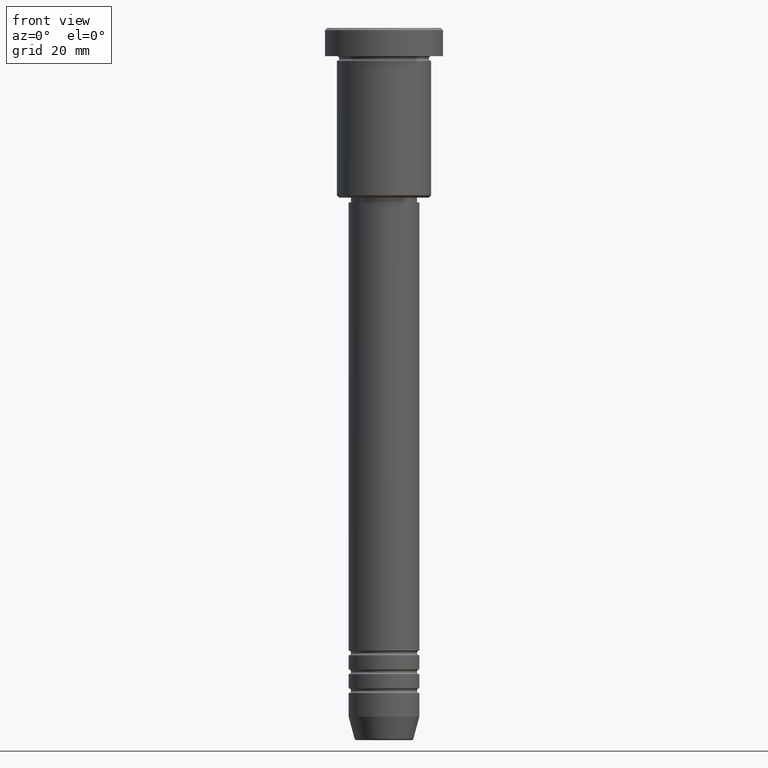
[diagram: clean part render]
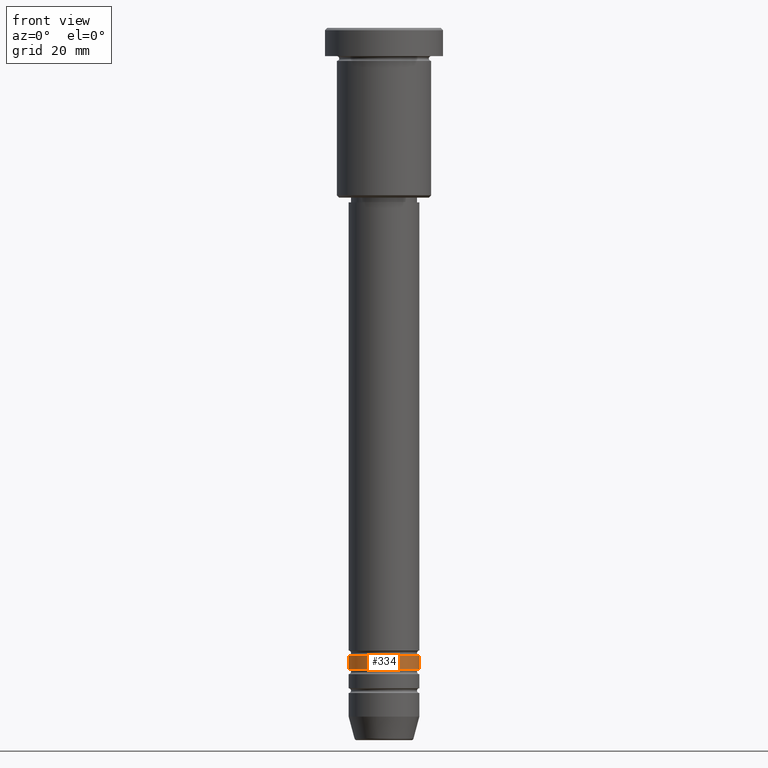
[diagram: same view with one face highlighted and labeled with its STEP entity id]
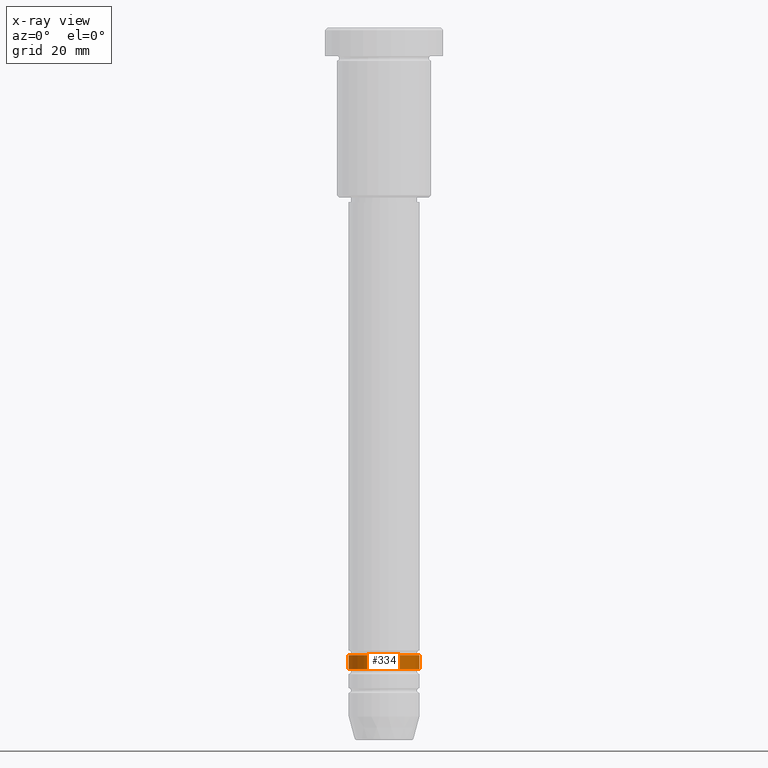
[diagram: x-ray of the same camera — body ghosted, the highlighted face saturated]
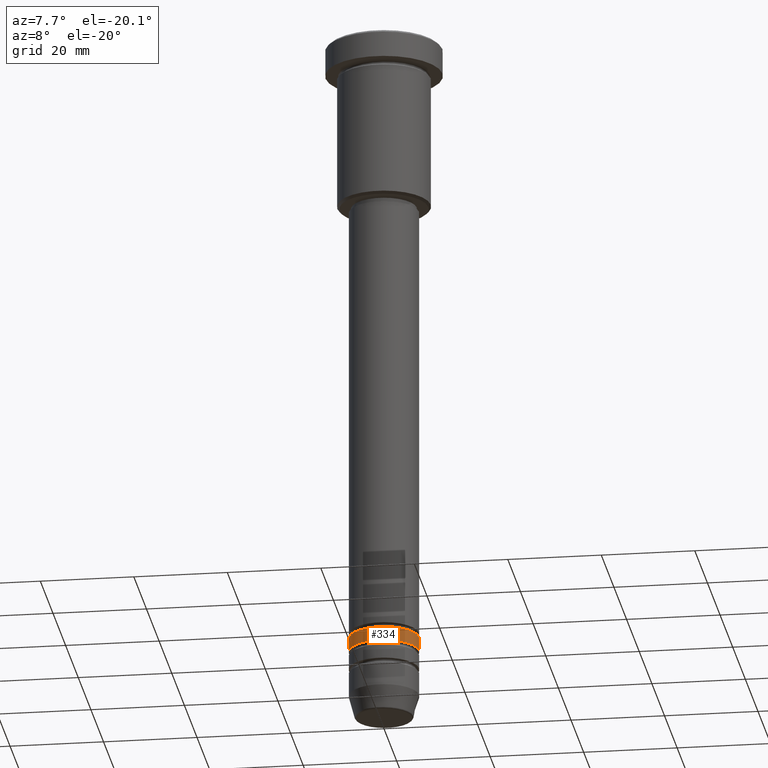
[diagram: same view with one face highlighted and labeled with its STEP entity id]
A machine part, front view. The second image highlights one B-rep face of the part: STEP entity #334.
The next image is the same camera in x-ray: the body ghosted, the highlighted face saturated — about 0% of this face is hidden behind the body in this view.
A second angle (auxiliary view) of the same face is appended — the face is thin or edge-on in the first view.
In plain terms, the highlighted cylindrical surface (edge-blend (fillet) strip) has radius 7.5 mm, axis along (-0, -0, 1).
Its self-contained STEP definition (entity closure, byte-faithful):
#46 = VECTOR ( 'NONE', #191, 1000.000000000000000 ) ;
#80 = ORIENTED_EDGE ( 'NONE', *, *, #107, .F. ) ;
#99 = CARTESIAN_POINT ( 'NONE',  ( 7.500000000000000000, 0.000000000000000000, -132.9999999999998863 ) ) ;
#102 = CARTESIAN_POINT ( 'NONE',  ( 7.500000000000001776, 0.000000000000000000, 0.000000000000000000 ) ) ;
#107 = EDGE_CURVE ( 'NONE', #396, #1166, #938, .T. ) ;
#161 = CYLINDRICAL_SURFACE ( 'NONE', #692, 7.500000000000001776 ) ;
#191 = DIRECTION ( 'NONE',  ( -0.000000000000000000, -0.000000000000000000, 1.000000000000000000 ) ) ;
#210 = CIRCLE ( 'NONE', #488, 7.500000000000002665 ) ;
#216 = EDGE_CURVE ( 'NONE', #396, #1171, #210, .T. ) ;
#222 = FACE_OUTER_BOUND ( 'NONE', #1067, .T. ) ;
#279 = DIRECTION ( 'NONE',  ( -0.000000000000000000, -0.000000000000000000, 1.000000000000000000 ) ) ;
#334 = ADVANCED_FACE ( 'NONE', ( #222 ), #161, .T. ) ;
#335 = CARTESIAN_POINT ( 'NONE',  ( 0.000000000000000000, 0.000000000000000000, 0.000000000000000000 ) ) ;
#363 = DIRECTION ( 'NONE',  ( 1.000000000000000000, 0.000000000000000000, 0.000000000000000000 ) ) ;
#367 = EDGE_CURVE ( 'NONE', #1166, #584, #567, .T. ) ;
#396 = VERTEX_POINT ( 'NONE', #898 ) ;
#432 = ORIENTED_EDGE ( 'NONE', *, *, #582, .T. ) ;
#433 = DIRECTION ( 'NONE',  ( 1.000000000000000000, 0.000000000000000000, 0.000000000000000000 ) ) ;
#488 = AXIS2_PLACEMENT_3D ( 'NONE', #739, #541, #363 ) ;
#509 = AXIS2_PLACEMENT_3D ( 'NONE', #513, #1173, #1074 ) ;
#513 = CARTESIAN_POINT ( 'NONE',  ( 0.000000000000000000, 0.000000000000000000, -132.9999999999998863 ) ) ;
#529 = LINE ( 'NONE', #102, #1177 ) ;
#538 = CARTESIAN_POINT ( 'NONE',  ( -7.500000000000001776, 9.184850993605149917E-16, 0.000000000000000000 ) ) ;
#541 = DIRECTION ( 'NONE',  ( -0.000000000000000000, -0.000000000000000000, 1.000000000000000000 ) ) ;
#567 = CIRCLE ( 'NONE', #509, 7.500000000000000000 ) ;
#576 = ORIENTED_EDGE ( 'NONE', *, *, #216, .T. ) ;
#582 = EDGE_CURVE ( 'NONE', #1171, #584, #529, .T. ) ;
#584 = VERTEX_POINT ( 'NONE', #99 ) ;
#597 = CARTESIAN_POINT ( 'NONE',  ( -7.500000000000000000, 9.184850993605147944E-16, -132.9999999999998863 ) ) ;
#692 = AXIS2_PLACEMENT_3D ( 'NONE', #335, #1001, #433 ) ;
#739 = CARTESIAN_POINT ( 'NONE',  ( 0.000000000000000000, 0.000000000000000000, -135.9999999999999147 ) ) ;
#892 = ORIENTED_EDGE ( 'NONE', *, *, #367, .F. ) ;
#898 = CARTESIAN_POINT ( 'NONE',  ( -7.500000000000003553, 9.184850993605151889E-16, -135.9999999999999147 ) ) ;
#938 = LINE ( 'NONE', #538, #46 ) ;
#1001 = DIRECTION ( 'NONE',  ( -0.000000000000000000, -0.000000000000000000, 1.000000000000000000 ) ) ;
#1002 = CARTESIAN_POINT ( 'NONE',  ( 7.500000000000002665, 0.000000000000000000, -135.9999999999999147 ) ) ;
#1067 = EDGE_LOOP ( 'NONE', ( #80, #576, #432, #892 ) ) ;
#1074 = DIRECTION ( 'NONE',  ( 1.000000000000000000, 0.000000000000000000, 0.000000000000000000 ) ) ;
#1166 = VERTEX_POINT ( 'NONE', #597 ) ;
#1171 = VERTEX_POINT ( 'NONE', #1002 ) ;
#1173 = DIRECTION ( 'NONE',  ( -0.000000000000000000, -0.000000000000000000, 1.000000000000000000 ) ) ;
#1177 = VECTOR ( 'NONE', #279, 1000.000000000000000 ) ;